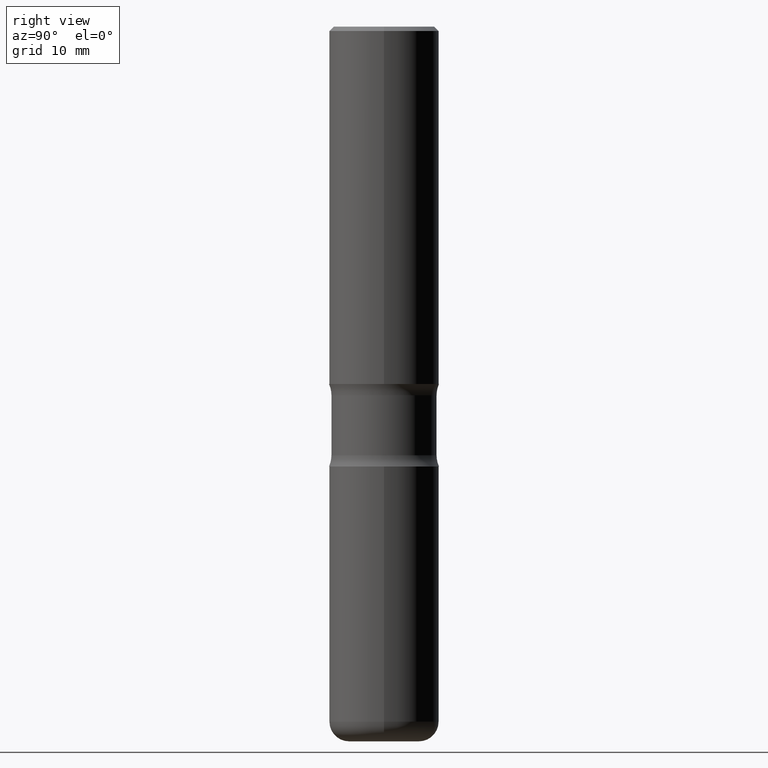
[diagram: clean part render]
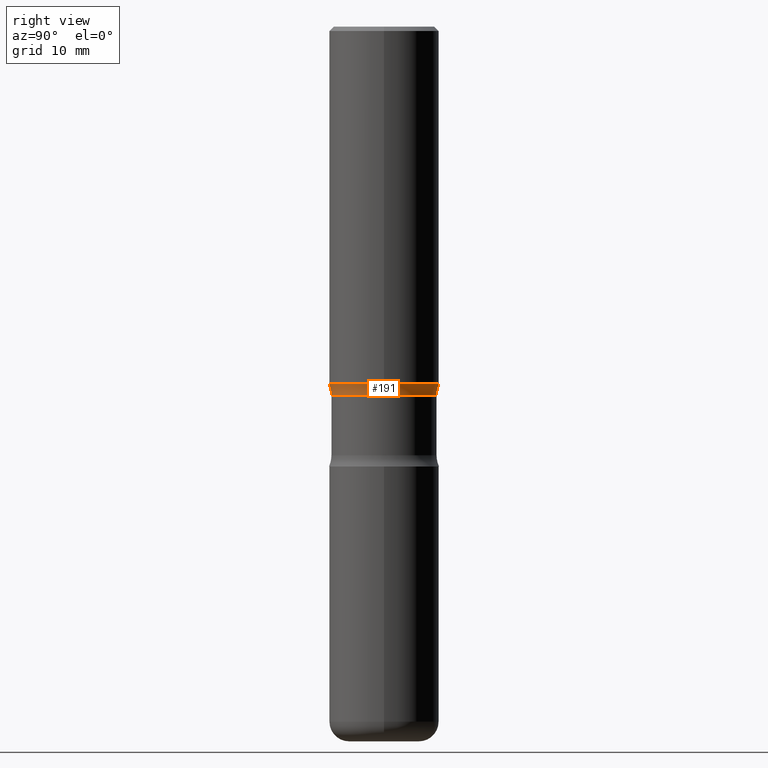
[diagram: same view with one face highlighted and labeled with its STEP entity id]
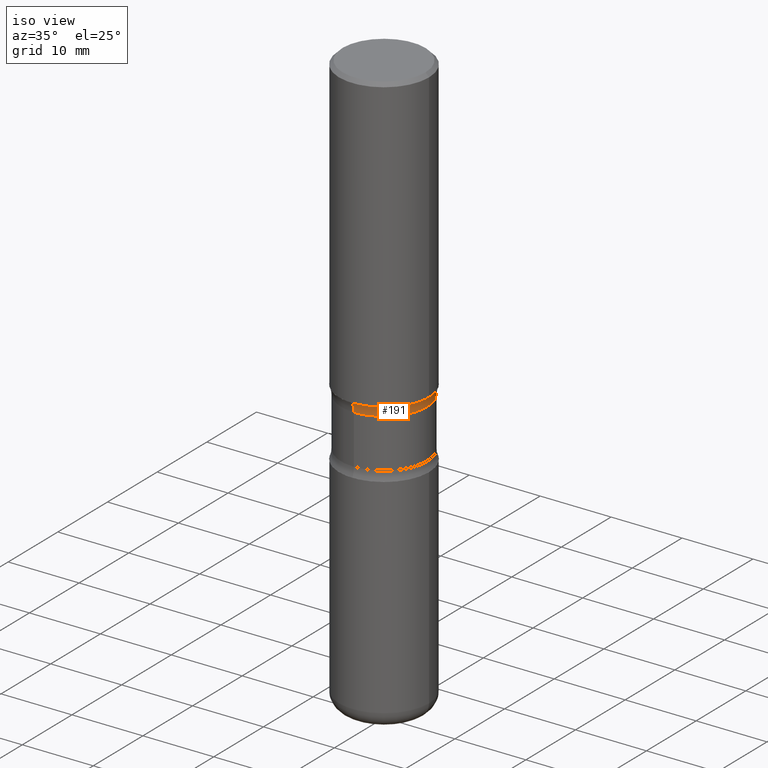
[diagram: same view with one face highlighted and labeled with its STEP entity id]
A machine part, right view. The second image highlights one B-rep face of the part: STEP entity #191.
A second angle (iso view) of the same face is appended — the face is thin or edge-on in the first view.
In plain terms, the highlighted toroidal blend (fillet) surface has major radius 9.2456 mm and minor (blend) radius 3.175 mm.
Its self-contained STEP definition (entity closure, byte-faithful):
#14 = VERTEX_POINT ( 'NONE', #249 ) ;
#24 = DIRECTION ( 'NONE',  ( 2.319831445618894347E-29, -3.671401190008483650E-15, -1.000000000000000000 ) ) ;
#43 = ORIENTED_EDGE ( 'NONE', *, *, #165, .F. ) ;
#56 = DIRECTION ( 'NONE',  ( 6.982962677686265922E-15, 1.000000000000000000, -3.671401190008483650E-15 ) ) ;
#60 = DIRECTION ( 'NONE',  ( 2.319831445618894347E-29, -3.671401190008483650E-15, -1.000000000000000000 ) ) ;
#62 = CARTESIAN_POINT ( 'NONE',  ( 2.541798414677842119E-15, 0.3639999999999942171, -1.676273774973179753 ) ) ;
#67 = CARTESIAN_POINT ( 'NONE',  ( 4.139947335781554076E-29, -5.794433829885863530E-15, -1.676273774973178199 ) ) ;
#71 = EDGE_LOOP ( 'NONE', ( #43, #543, #255, #177 ) ) ;
#73 = AXIS2_PLACEMENT_3D ( 'NONE', #67, #24, #194 ) ;
#98 = DIRECTION ( 'NONE',  ( 6.860497997771530774E-15, 1.000000000000000000, 0.000000000000000000 ) ) ;
#109 = EDGE_CURVE ( 'NONE', #419, #316, #483, .T. ) ;
#130 = AXIS2_PLACEMENT_3D ( 'NONE', #323, #403, #98 ) ;
#141 = FACE_OUTER_BOUND ( 'NONE', #71, .T. ) ;
#154 = VERTEX_POINT ( 'NONE', #442 ) ;
#165 = EDGE_CURVE ( 'NONE', #14, #316, #540, .T. ) ;
#177 = ORIENTED_EDGE ( 'NONE', *, *, #109, .T. ) ;
#180 = DIRECTION ( 'NONE',  ( 6.982962677686266711E-15, 1.000000000000000000, -3.278217592397110735E-15 ) ) ;
#191 = ADVANCED_FACE ( 'NONE', ( #141 ), #518, .F. ) ;
#194 = DIRECTION ( 'NONE',  ( 6.982962677686265922E-15, 1.000000000000000000, -3.429097899996981454E-15 ) ) ;
#198 = DIRECTION ( 'NONE',  ( -1.000000000000000000, 6.982962677686265922E-15, -4.883557194083112901E-29 ) ) ;
#227 = AXIS2_PLACEMENT_3D ( 'NONE', #315, #240, #180 ) ;
#230 = AXIS2_PLACEMENT_3D ( 'NONE', #62, #198, #246 ) ;
#240 = DIRECTION ( 'NONE',  ( 2.319831445618894347E-29, -3.671401190008483650E-15, -1.000000000000000000 ) ) ;
#246 = DIRECTION ( 'NONE',  ( -6.982962677686267499E-15, -1.000000000000000000, 0.000000000000000000 ) ) ;
#249 = CARTESIAN_POINT ( 'NONE',  ( -1.677391760455100666E-15, -0.2390000000000059299, -1.676273774973177533 ) ) ;
#255 = ORIENTED_EDGE ( 'NONE', *, *, #401, .T. ) ;
#299 = AXIS2_PLACEMENT_3D ( 'NONE', #354, #60, #56 ) ;
#315 = CARTESIAN_POINT ( 'NONE',  ( 4.021000820263187463E-29, -5.606187231433109599E-15, -1.624999999999999778 ) ) ;
#316 = VERTEX_POINT ( 'NONE', #459 ) ;
#323 = CARTESIAN_POINT ( 'NONE',  ( -2.497221271188795780E-15, -0.3640000000000058189, -1.676273774973176867 ) ) ;
#346 = CIRCLE ( 'NONE', #73, 0.2390000000000001290 ) ;
#354 = CARTESIAN_POINT ( 'NONE',  ( 4.146966208775284275E-29, -5.784382404269399522E-15, -1.676273774973178199 ) ) ;
#355 = EDGE_CURVE ( 'NONE', #154, #14, #346, .T. ) ;
#401 = EDGE_CURVE ( 'NONE', #154, #419, #551, .T. ) ;
#403 = DIRECTION ( 'NONE',  ( 1.000000000000000000, -6.860497997771530774E-15, 4.838595496925816082E-29 ) ) ;
#419 = VERTEX_POINT ( 'NONE', #542 ) ;
#442 = CARTESIAN_POINT ( 'NONE',  ( 1.668928079967059964E-15, 0.2389999999999943281, -1.676273774973179087 ) ) ;
#459 = CARTESIAN_POINT ( 'NONE',  ( -1.715124499442845814E-15, -0.2500000000000061062, -1.624999999999998668 ) ) ;
#483 = CIRCLE ( 'NONE', #227, 0.2500000000000003886 ) ;
#518 = TOROIDAL_SURFACE ( 'NONE', #299, 0.3639999999999999902, 0.1250000000000000555 ) ;
#540 = CIRCLE ( 'NONE', #130, 0.1250000000000000555 ) ;
#542 = CARTESIAN_POINT ( 'NONE',  ( 1.745740669421610459E-15, 0.2499999999999949207, -1.625000000000000666 ) ) ;
#543 = ORIENTED_EDGE ( 'NONE', *, *, #355, .F. ) ;
#551 = CIRCLE ( 'NONE', #230, 0.1250000000000000555 ) ;